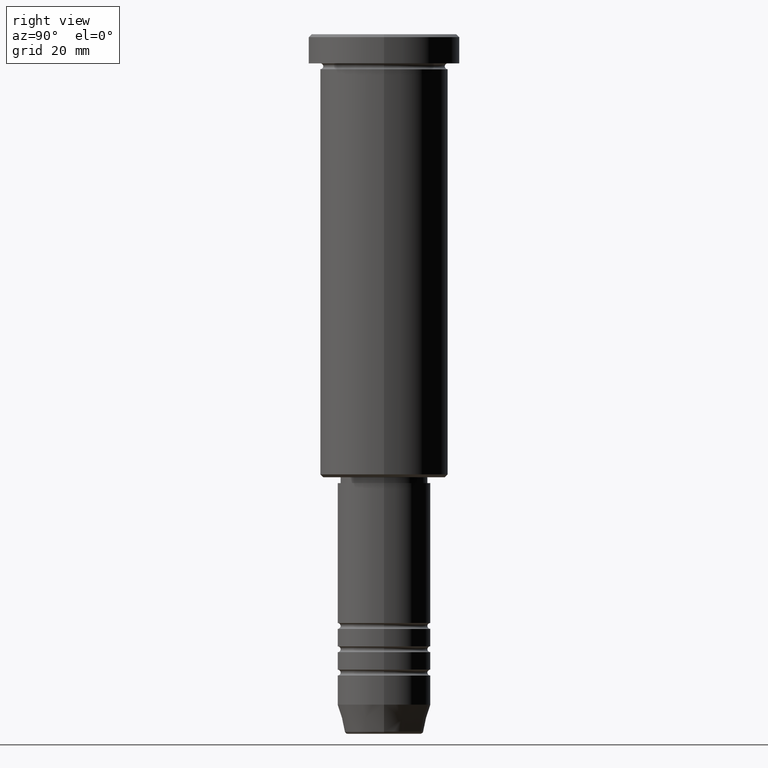
[diagram: clean part render]
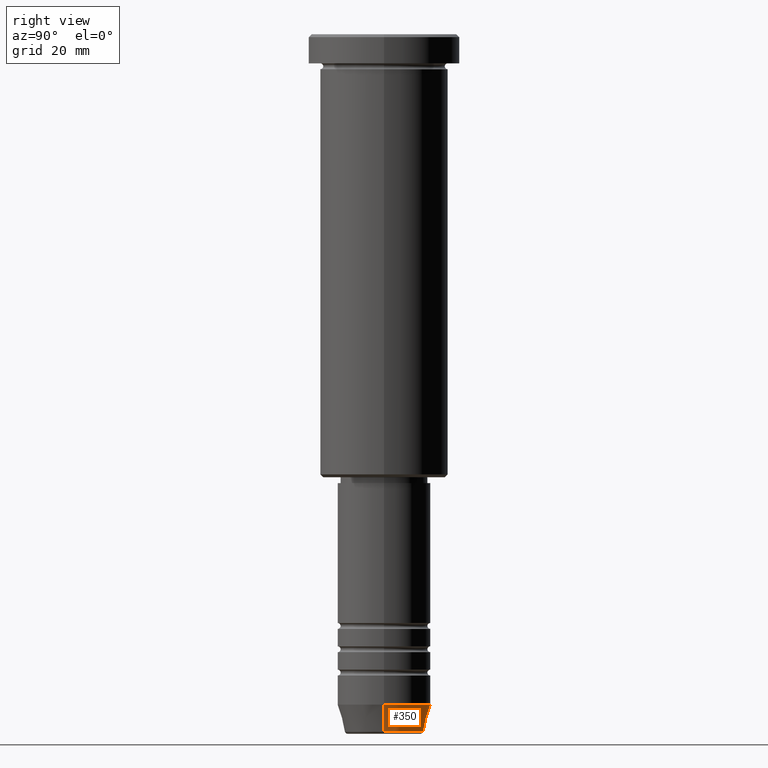
[diagram: same view with one face highlighted and labeled with its STEP entity id]
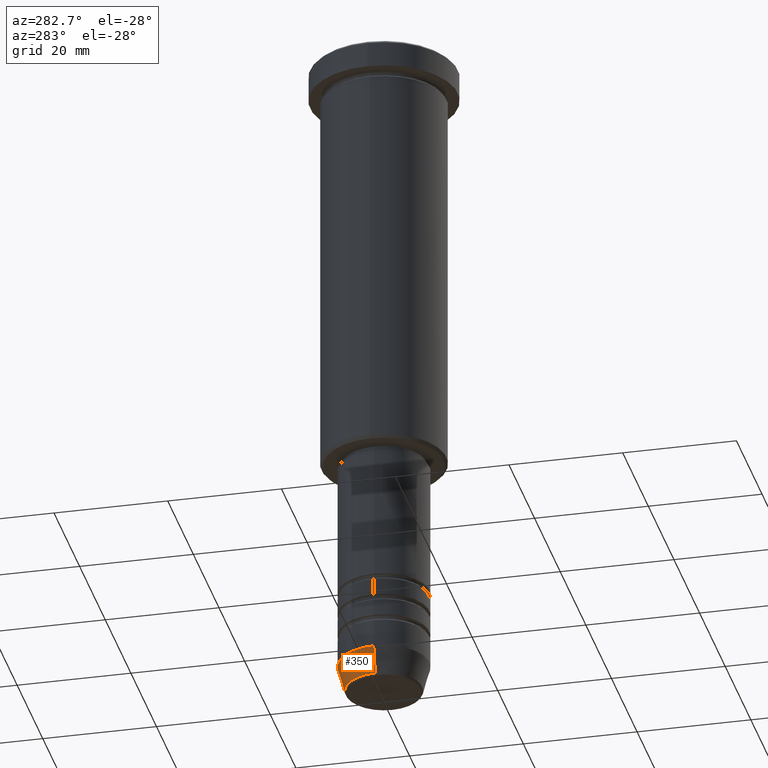
[diagram: same view with one face highlighted and labeled with its STEP entity id]
A machine part, right view. The second image highlights one B-rep face of the part: STEP entity #350.
A second angle (auxiliary view) of the same face is appended — the face is thin or edge-on in the first view.
In plain terms, the highlighted conical surface has half-angle 15 deg.
Its self-contained STEP definition (entity closure, byte-faithful):
#3 = CONICAL_SURFACE ( 'NONE', #1005, 8.000000000000000000, 0.2617993877991502405 ) ;
#36 = DIRECTION ( 'NONE',  ( -0.000000000000000000, -0.000000000000000000, 1.000000000000000000 ) ) ;
#61 = VECTOR ( 'NONE', #771, 1000.000000000000114 ) ;
#67 = VERTEX_POINT ( 'NONE', #979 ) ;
#128 = CARTESIAN_POINT ( 'NONE',  ( 8.000000000000000000, 0.000000000000000000, -114.9999999999999858 ) ) ;
#135 = CARTESIAN_POINT ( 'NONE',  ( 0.000000000000000000, 0.000000000000000000, -114.9999999999999858 ) ) ;
#147 = DIRECTION ( 'NONE',  ( -0.000000000000000000, -0.000000000000000000, 1.000000000000000000 ) ) ;
#194 = VECTOR ( 'NONE', #611, 1000.000000000000114 ) ;
#202 = ORIENTED_EDGE ( 'NONE', *, *, #863, .T. ) ;
#261 = LINE ( 'NONE', #539, #194 ) ;
#271 = ORIENTED_EDGE ( 'NONE', *, *, #1161, .T. ) ;
#316 = DIRECTION ( 'NONE',  ( -0.000000000000000000, -0.000000000000000000, 1.000000000000000000 ) ) ;
#350 = ADVANCED_FACE ( 'NONE', ( #753 ), #3, .T. ) ;
#445 = ORIENTED_EDGE ( 'NONE', *, *, #1135, .F. ) ;
#539 = CARTESIAN_POINT ( 'NONE',  ( -8.000000000000000000, 9.797174393178825657E-16, -114.9999999999999858 ) ) ;
#549 = CIRCLE ( 'NONE', #953, 6.759553456999436882 ) ;
#611 = DIRECTION ( 'NONE',  ( -0.2588190451025214611, 3.169619151431774186E-17, 0.9659258262890679791 ) ) ;
#649 = VERTEX_POINT ( 'NONE', #1136 ) ;
#672 = CARTESIAN_POINT ( 'NONE',  ( 0.000000000000000000, 0.000000000000000000, -114.9999999999999858 ) ) ;
#682 = DIRECTION ( 'NONE',  ( 1.000000000000000000, 0.000000000000000000, 0.000000000000000000 ) ) ;
#691 = EDGE_CURVE ( 'NONE', #649, #945, #837, .T. ) ;
#753 = FACE_OUTER_BOUND ( 'NONE', #785, .T. ) ;
#771 = DIRECTION ( 'NONE',  ( 0.2588190451025214611, 0.000000000000000000, 0.9659258262890679791 ) ) ;
#785 = EDGE_LOOP ( 'NONE', ( #202, #271, #445, #1153 ) ) ;
#837 = LINE ( 'NONE', #1043, #61 ) ;
#863 = EDGE_CURVE ( 'NONE', #649, #67, #549, .T. ) ;
#865 = DIRECTION ( 'NONE',  ( 1.000000000000000000, 0.000000000000000000, 0.000000000000000000 ) ) ;
#916 = AXIS2_PLACEMENT_3D ( 'NONE', #135, #316, #1041 ) ;
#933 = VERTEX_POINT ( 'NONE', #1028 ) ;
#945 = VERTEX_POINT ( 'NONE', #128 ) ;
#953 = AXIS2_PLACEMENT_3D ( 'NONE', #960, #147, #865 ) ;
#960 = CARTESIAN_POINT ( 'NONE',  ( 0.000000000000000000, 0.000000000000000000, -119.6294095225512564 ) ) ;
#974 = CIRCLE ( 'NONE', #916, 8.000000000000000000 ) ;
#979 = CARTESIAN_POINT ( 'NONE',  ( -6.759553456999437770, 9.037619948979306213E-16, -119.6294095225512564 ) ) ;
#1005 = AXIS2_PLACEMENT_3D ( 'NONE', #672, #36, #682 ) ;
#1028 = CARTESIAN_POINT ( 'NONE',  ( -8.000000000000000000, 9.797174393178825657E-16, -114.9999999999999858 ) ) ;
#1041 = DIRECTION ( 'NONE',  ( 1.000000000000000000, 0.000000000000000000, 0.000000000000000000 ) ) ;
#1043 = CARTESIAN_POINT ( 'NONE',  ( 8.000000000000000000, 0.000000000000000000, -114.9999999999999858 ) ) ;
#1135 = EDGE_CURVE ( 'NONE', #945, #933, #974, .T. ) ;
#1136 = CARTESIAN_POINT ( 'NONE',  ( 6.759553456999436882, 0.000000000000000000, -119.6294095225512564 ) ) ;
#1153 = ORIENTED_EDGE ( 'NONE', *, *, #691, .F. ) ;
#1161 = EDGE_CURVE ( 'NONE', #67, #933, #261, .T. ) ;